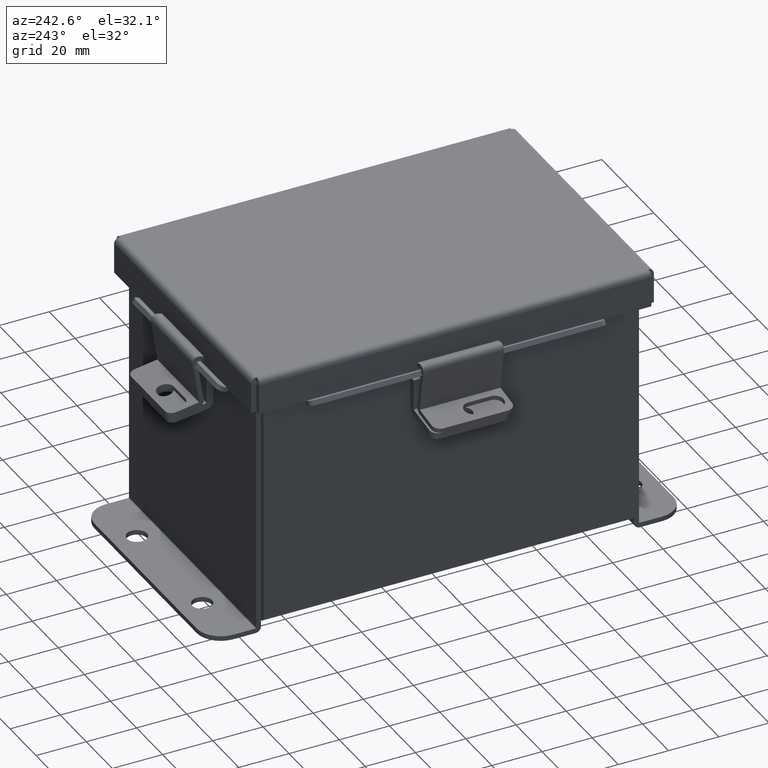
[diagram: clean part render]
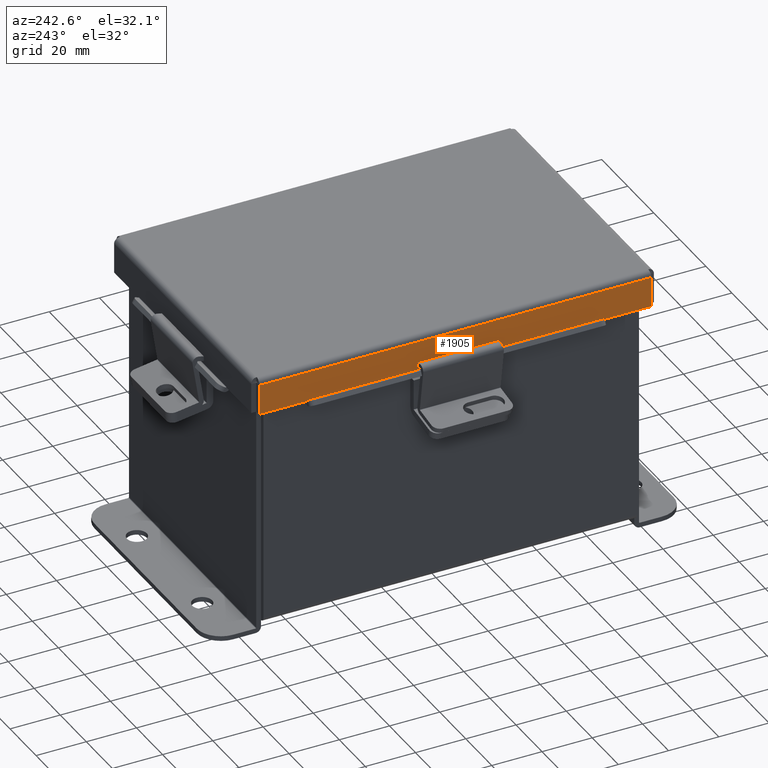
[diagram: same view with one face highlighted and labeled with its STEP entity id]
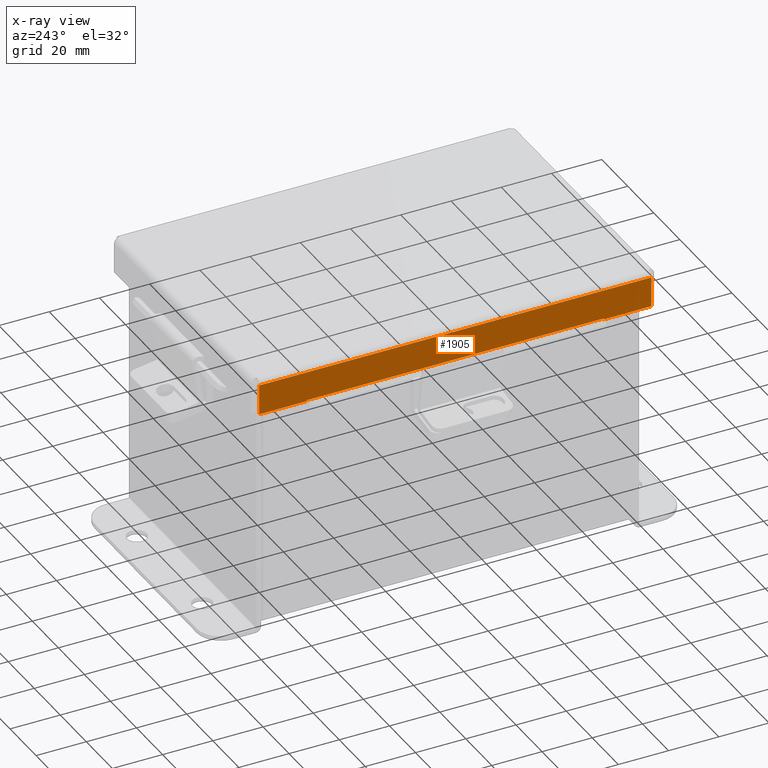
[diagram: x-ray of the same camera — body ghosted, the highlighted face saturated]
A machine part, auxiliary view. The second image highlights one B-rep face of the part: STEP entity #1905.
The next image is the same camera in x-ray: the body ghosted, the highlighted face saturated — about 0% of this face is hidden behind the body in this view.
In plain terms, the highlighted planar face has unit normal (1, -0, 0).
Its self-contained STEP definition (entity closure, byte-faithful):
#26 = CARTESIAN_POINT ( 'NONE',  ( 2.156250000000001300, -3.074478932188135600, 0.4872999999999997300 ) ) ;
#508 = VECTOR ( 'NONE', #3710, 39.37007874015748100 ) ;
#527 = ORIENTED_EDGE ( 'NONE', *, *, #3197, .T. ) ;
#1136 = CARTESIAN_POINT ( 'NONE',  ( 2.156250000000001300, -2.324478932188135600, 0.4872999999999997300 ) ) ;
#1152 = CARTESIAN_POINT ( 'NONE',  ( 2.156250000000001300, -2.324478932188135600, 0.4717115427318792600 ) ) ;
#1390 = VERTEX_POINT ( 'NONE', #26 ) ;
#1499 = VECTOR ( 'NONE', #2601, 39.37007874015748100 ) ;
#1514 = ORIENTED_EDGE ( 'NONE', *, *, #7966, .F. ) ;
#1618 = CARTESIAN_POINT ( 'NONE',  ( 2.156250000000001800, -2.324478932188135600, 0.4872999999999994600 ) ) ;
#1696 = LINE ( 'NONE', #3901, #3446 ) ;
#1708 = VECTOR ( 'NONE', #3929, 39.37007874015748100 ) ;
#1875 = CARTESIAN_POINT ( 'NONE',  ( 2.156250000000001300, -6.465553905005006000E-018, 0.4872999999999997300 ) ) ;
#1905 = ADVANCED_FACE ( 'NONE', ( #6863 ), #4561, .F. ) ;
#1989 = AXIS2_PLACEMENT_3D ( 'NONE', #6797, #8302, #3849 ) ;
#2053 = ORIENTED_EDGE ( 'NONE', *, *, #9017, .F. ) ;
#2085 = DIRECTION ( 'NONE',  ( 1.752481305030171400E-014, 0.0000000000000000000, 1.000000000000000000 ) ) ;
#2193 = CARTESIAN_POINT ( 'NONE',  ( 2.156250000000001300, -6.465553905005006000E-018, 0.4872999999999997300 ) ) ;
#2237 = EDGE_CURVE ( 'NONE', #6841, #1390, #4293, .T. ) ;
#2548 = VECTOR ( 'NONE', #3488, 39.37007874015748100 ) ;
#2601 = DIRECTION ( 'NONE',  ( 0.0000000000000000000, -1.000000000000000000, 0.0000000000000000000 ) ) ;
#2769 = VERTEX_POINT ( 'NONE', #1136 ) ;
#2980 = ORIENTED_EDGE ( 'NONE', *, *, #9486, .F. ) ;
#3087 = CARTESIAN_POINT ( 'NONE',  ( 2.156249999999999600, 3.074478932188135200, 0.01299999999999932100 ) ) ;
#3105 = DIRECTION ( 'NONE',  ( -3.504962610060373800E-014, 0.0000000000000000000, -1.000000000000000000 ) ) ;
#3178 = CARTESIAN_POINT ( 'NONE',  ( 2.156250000000000900, -2.324478932188135600, 0.4717115427318792600 ) ) ;
#3197 = EDGE_CURVE ( 'NONE', #6930, #6714, #7421, .T. ) ;
#3446 = VECTOR ( 'NONE', #8362, 39.37007874015748100 ) ;
#3488 = DIRECTION ( 'NONE',  ( 3.363654414526078900E-015, -0.0000000000000000000, 1.000000000000000000 ) ) ;
#3681 = LINE ( 'NONE', #3178, #1708 ) ;
#3710 = DIRECTION ( 'NONE',  ( 1.455681990289586100E-031, -1.000000000000000000, 4.327679989963190900E-017 ) ) ;
#3849 = DIRECTION ( 'NONE',  ( 3.363654414526078900E-015, 0.0000000000000000000, 1.000000000000000000 ) ) ;
#3901 = CARTESIAN_POINT ( 'NONE',  ( 2.156249999999999600, 3.074478932188135200, -7.513693487333438900E-015 ) ) ;
#3929 = DIRECTION ( 'NONE',  ( 0.0000000000000000000, 1.000000000000000000, 0.0000000000000000000 ) ) ;
#4212 = LINE ( 'NONE', #8180, #508 ) ;
#4293 = LINE ( 'NONE', #7945, #2548 ) ;
#4462 = LINE ( 'NONE', #1618, #7964 ) ;
#4561 = PLANE ( 'NONE',  #1989 ) ;
#4903 = LINE ( 'NONE', #8744, #8628 ) ;
#5059 = ORIENTED_EDGE ( 'NONE', *, *, #6665, .T. ) ;
#5101 = EDGE_CURVE ( 'NONE', #2769, #1390, #7427, .T. ) ;
#5217 = VECTOR ( 'NONE', #5896, 39.37007874015748100 ) ;
#5344 = ORIENTED_EDGE ( 'NONE', *, *, #2237, .F. ) ;
#5621 = CARTESIAN_POINT ( 'NONE',  ( 2.156250000000001300, 3.074478932188135200, 0.4872999999999997300 ) ) ;
#5877 = CARTESIAN_POINT ( 'NONE',  ( 2.156250000000001300, 2.324478932188135200, 0.4717115427318792600 ) ) ;
#5896 = DIRECTION ( 'NONE',  ( 0.0000000000000000000, -1.000000000000000000, 0.0000000000000000000 ) ) ;
#6133 = EDGE_CURVE ( 'NONE', #8699, #7031, #3681, .T. ) ;
#6180 = CARTESIAN_POINT ( 'NONE',  ( 2.156250000000001300, 2.324478932188134700, 0.4872999999999997300 ) ) ;
#6310 = CARTESIAN_POINT ( 'NONE',  ( 2.156249999999999600, -3.074478932188135200, 0.01299999999999944900 ) ) ;
#6599 = VERTEX_POINT ( 'NONE', #3087 ) ;
#6665 = EDGE_CURVE ( 'NONE', #6599, #6930, #1696, .T. ) ;
#6714 = VERTEX_POINT ( 'NONE', #6180 ) ;
#6797 = CARTESIAN_POINT ( 'NONE',  ( 2.156249999999999600, -6.465553905005006000E-018, -7.513693487333438900E-015 ) ) ;
#6841 = VERTEX_POINT ( 'NONE', #6310 ) ;
#6863 = FACE_OUTER_BOUND ( 'NONE', #7415, .T. ) ;
#6930 = VERTEX_POINT ( 'NONE', #5621 ) ;
#7031 = VERTEX_POINT ( 'NONE', #5877 ) ;
#7415 = EDGE_LOOP ( 'NONE', ( #1514, #8772, #5344, #2053, #5059, #527, #2980, #8328 ) ) ;
#7421 = LINE ( 'NONE', #1875, #1499 ) ;
#7427 = LINE ( 'NONE', #2193, #5217 ) ;
#7945 = CARTESIAN_POINT ( 'NONE',  ( 2.156249999999999600, -3.074478932188135600, -2.512649847650977400E-016 ) ) ;
#7964 = VECTOR ( 'NONE', #3105, 39.37007874015748100 ) ;
#7966 = EDGE_CURVE ( 'NONE', #2769, #8699, #4462, .T. ) ;
#8180 = CARTESIAN_POINT ( 'NONE',  ( 2.156249999999999600, -3.156249999999999600, 0.01299999999999959000 ) ) ;
#8302 = DIRECTION ( 'NONE',  ( -1.000000000000000000, 0.0000000000000000000, 3.363654414526078900E-015 ) ) ;
#8328 = ORIENTED_EDGE ( 'NONE', *, *, #6133, .F. ) ;
#8362 = DIRECTION ( 'NONE',  ( 3.363654414526078900E-015, 0.0000000000000000000, 1.000000000000000000 ) ) ;
#8628 = VECTOR ( 'NONE', #2085, 39.37007874015748100 ) ;
#8699 = VERTEX_POINT ( 'NONE', #1152 ) ;
#8744 = CARTESIAN_POINT ( 'NONE',  ( 2.156250000000000900, 2.324478932188135200, 0.4717115427318792600 ) ) ;
#8772 = ORIENTED_EDGE ( 'NONE', *, *, #5101, .T. ) ;
#9017 = EDGE_CURVE ( 'NONE', #6599, #6841, #4212, .T. ) ;
#9486 = EDGE_CURVE ( 'NONE', #7031, #6714, #4903, .T. ) ;